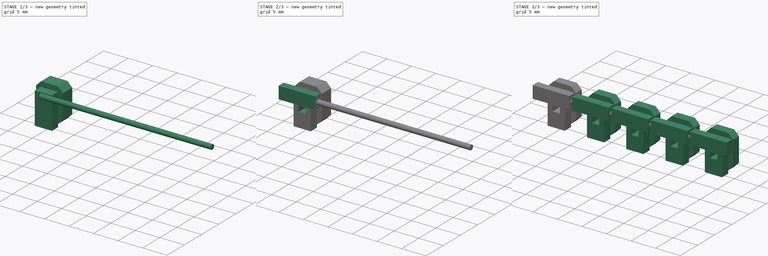
[diagram: build sequence overview — one tinted view per stage of 3, left to right]
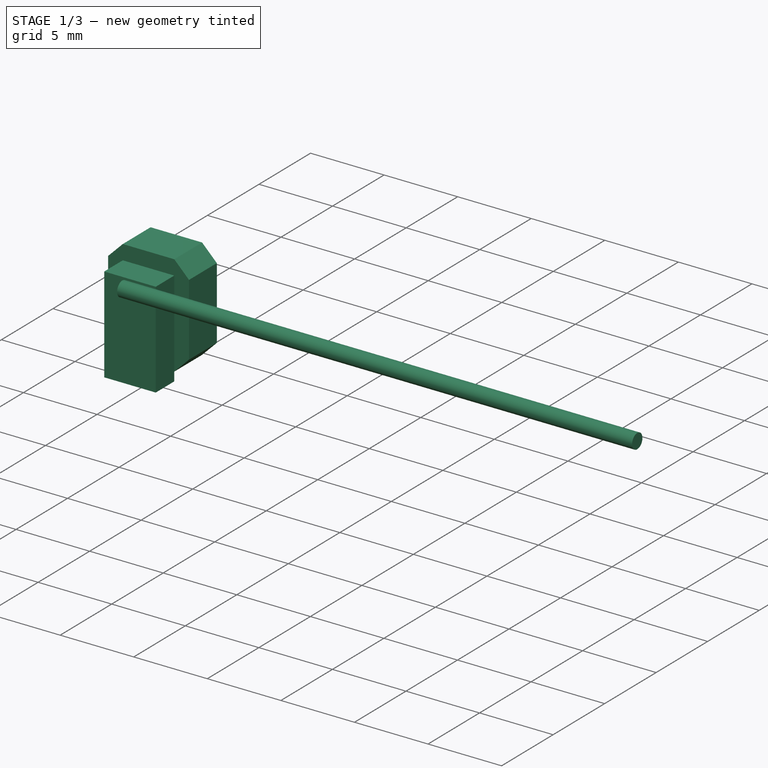
[diagram: stage 1 of 3 — iso view after this stage's code; geometry added in this stage tinted green]
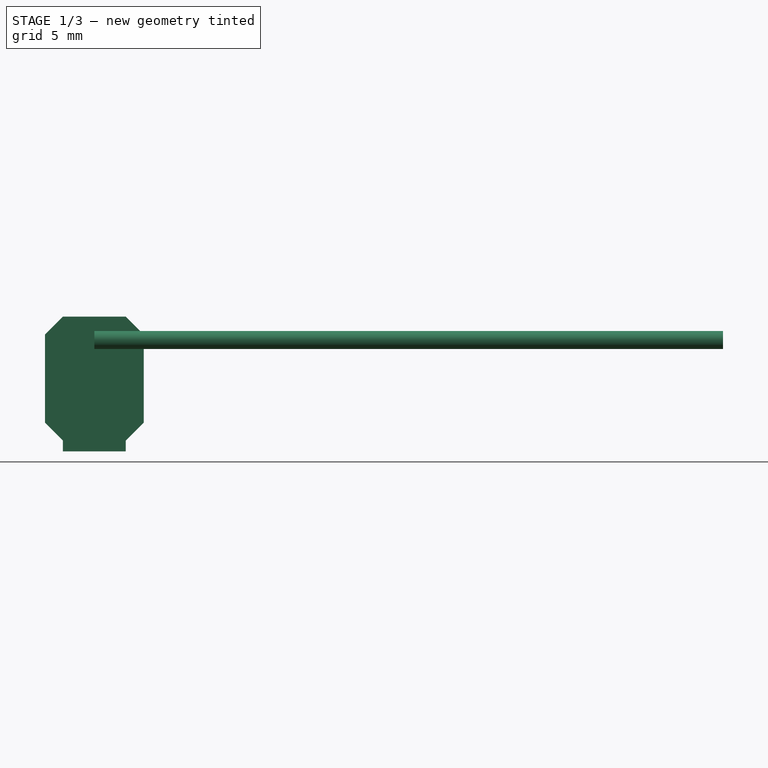
[diagram: stage 1 of 3 — front view after this stage's code; geometry added in this stage tinted green]
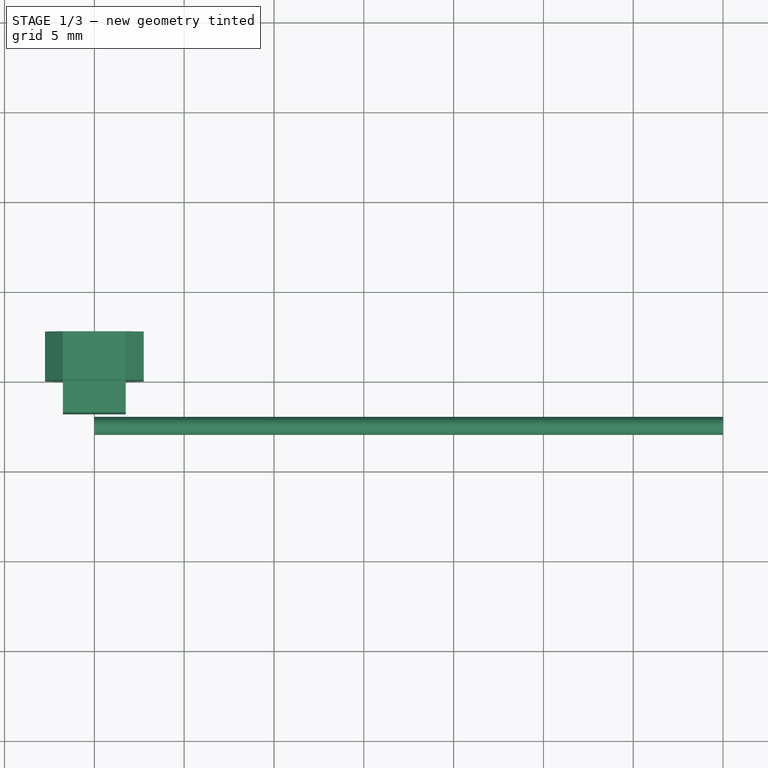
[diagram: stage 1 of 3 — top view after this stage's code; geometry added in this stage tinted green]
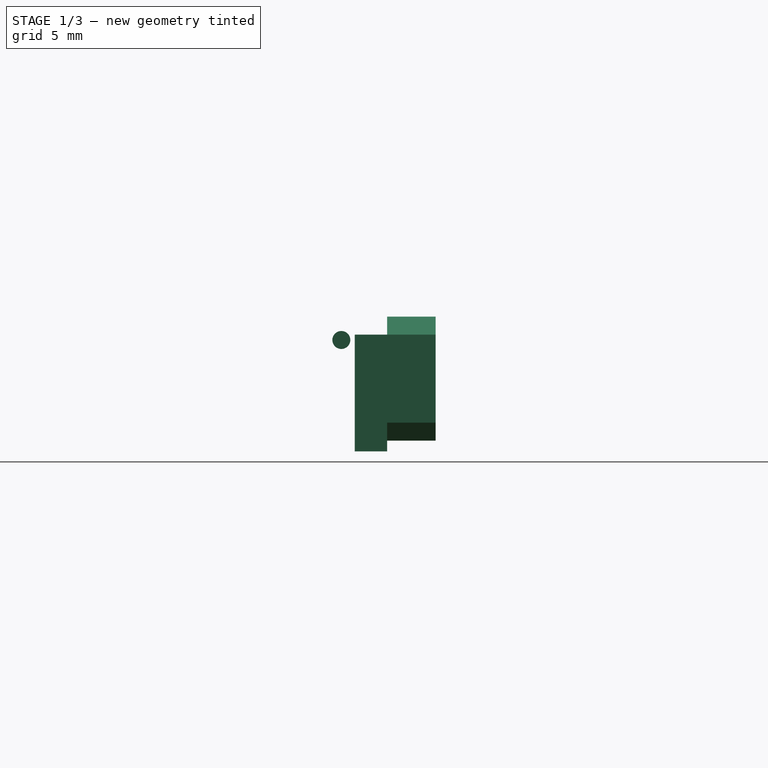
[diagram: stage 1 of 3 — right view after this stage's code; geometry added in this stage tinted green]
FCSTD DOCUMENT  (FreeCAD 0.16R6706 (Git))
Label: hhkb-swcaps-octagon,chamfer-r1
License: All rights reserved
LicenseURL: http://en.wikipedia.org/wiki/All_rights_reserved
objects: Sketcher::SketchObject×4, PartDesign::Pad×3, PartDesign::Pocket×1, PartDesign::Chamfer×1, Part::FeaturePython×1, Part::Cylinder×1, Part::MultiFuse×1
note: 16 computed .brp shape members not serialized (recipe doc carries the construction recipe); baked Part::Feature solids carry a one-line shape summary decoded from their .brp

FEATURE [Sketcher::SketchObject] Sketch  label="Body"
  Placement = pos=(0,0,0) rot=(1,0,0;1.5708rad)
  sketch-geometry (4):
    g0: LineSegment StartX=1.75 StartY=0 StartZ=0 EndX=-1.75 EndY=0 EndZ=0
    g1: LineSegment StartX=-1.75 StartY=0 StartZ=0 EndX=-1.75 EndY=6.5 EndZ=0
    g2: LineSegment StartX=-1.75 StartY=6.5 StartZ=0 EndX=1.75 EndY=6.5 EndZ=0
    g3: LineSegment StartX=1.75 StartY=6.5 StartZ=0 EndX=1.75 EndY=0 EndZ=0
  constraints (12):
    c: Coincident(g0,g1)
    c: Coincident(g1,g2)
    c: Coincident(g2,g3)
    c: Coincident(g3,g0)
    c: Horizontal(g0)
    c: Horizontal(g2)
    c: Vertical(g1)
    c: Vertical(g3)
    c: PointOnObject(g0,g-1)
    c: Symmetric(g2,g1,g-2)
    c: DistanceY(g3,g3) = 6.5  'Height'
    c: DistanceX(g2,g2) = 3.5  'Width'
FEATURE [PartDesign::Pad] Pad  label="PadBody"
  Length = 1.8
  Length2 = 100
  Placement = pos=(0,0,0) rot=(1,0,0;1.5708rad)
  Sketch = -> Sketch
  Type = 0
FEATURE [Sketcher::SketchObject] Sketch001  label="Cap"
  ExternalGeometry = -> [Pad]
  Placement = pos=(0,0,0) rot=(-1,0,0;1.5708rad)
  Support = -> Pad [Face5]
  sketch-geometry (8):
    g0: LineSegment StartX=-1.75 StartY=-0.6 StartZ=0 EndX=1.75 EndY=-0.6 EndZ=0
    g1: LineSegment StartX=2.75 StartY=-1.6 StartZ=0 EndX=2.75 EndY=-6.5 EndZ=0
    g2: LineSegment StartX=1.75 StartY=-7.5 StartZ=0 EndX=-1.75 EndY=-7.5 EndZ=0
    g3: LineSegment StartX=-2.75 StartY=-6.5 StartZ=0 EndX=-2.75 EndY=-1.6 EndZ=0
    g4: LineSegment StartX=-1.75 StartY=-0.6 StartZ=0 EndX=-2.75 EndY=-1.6 EndZ=0
    g5: LineSegment StartX=1.75 StartY=-0.6 StartZ=0 EndX=2.75 EndY=-1.6 EndZ=0
    g6: LineSegment StartX=2.75 StartY=-6.5 StartZ=0 EndX=1.75 EndY=-7.5 EndZ=0
    g7: LineSegment StartX=-2.75 StartY=-6.5 StartZ=0 EndX=-1.75 EndY=-7.5 EndZ=0
  constraints (23):
    c: Horizontal(g2)
    c: Vertical(g1)
    c: Vertical(g3)
    c: Coincident(g0,g4)  'Constraint8'
    c: Coincident(g3,g4)  'Constraint7'
    c: Coincident(g0,g5)  'Constraint6'
    c: Coincident(g1,g5)
    c: DistanceY(g0,g-3) = 0.6  'ClearancePCB'
    c: Coincident(g3,g7)
    c: Coincident(g2,g7)
    c: Coincident(g2,g6)
    c: Coincident(g1,g6)
    c: DistanceY(g2,g0) = 6.9  'Height'
    c: DistanceX(g3,g1) = 5.5  'Width'
    c: Equal(g6,g7)
    c: Equal(g7,g4)
    c: Equal(g4,g5)
    c: Symmetric(g0,g0,g-2)
    c: DistanceX(g4,g4) = 1  'ChamferWidth'
    c: DistanceY(g4,g4) = 1  'ChamferHeight'
    c: Symmetric(g1,g3,g-2)
    c: Equal(g3,g1)
    c: Equal(g2,g0)
FEATURE [PartDesign::Pad] Pad001  label="PadCap"
  Length = 2.7
  Length2 = 100
  Placement = pos=(0,0,0) rot=(1,0,0;1.5708rad)
  Sketch = -> Sketch001
  Type = 0
FEATURE [Part::Cylinder] Cylinder
  Angle = 360
  Height = 35
  Placement = pos=(0,-2.55,6.2) rot=(0,1,0;1.5708rad)
  Radius = 0.5
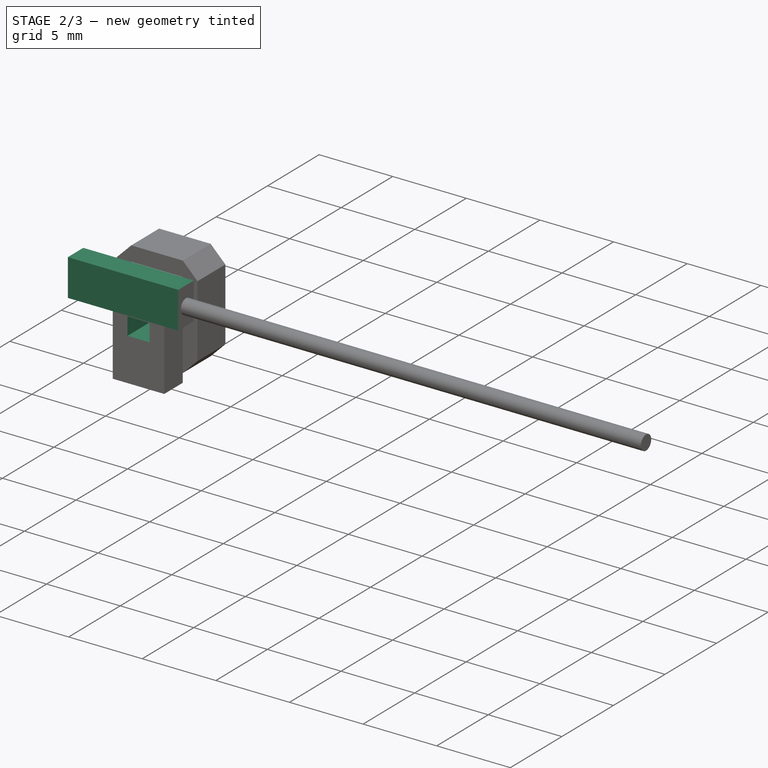
[diagram: stage 2 of 3 — iso view after this stage's code; geometry added in this stage tinted green]
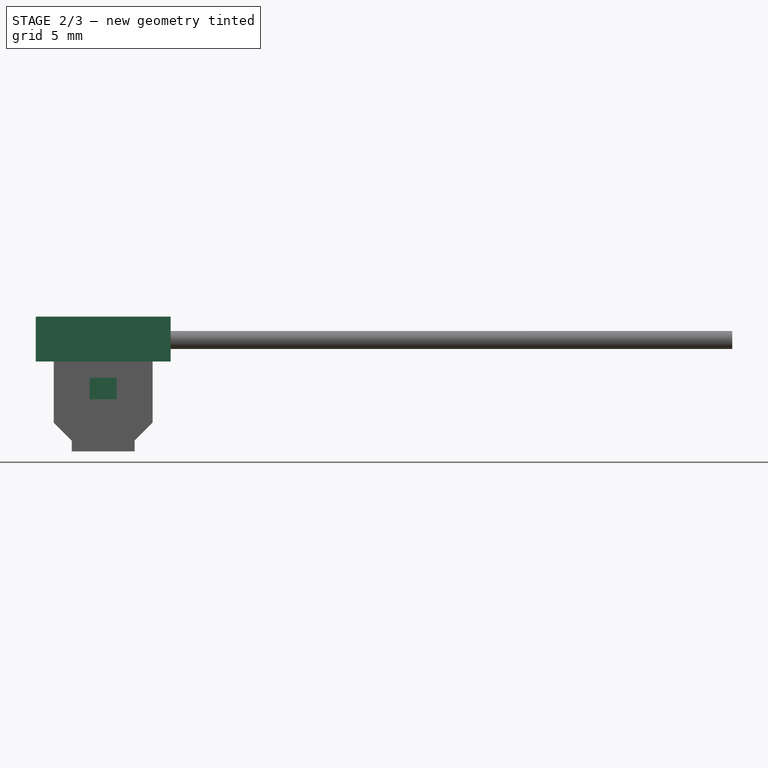
[diagram: stage 2 of 3 — front view after this stage's code; geometry added in this stage tinted green]
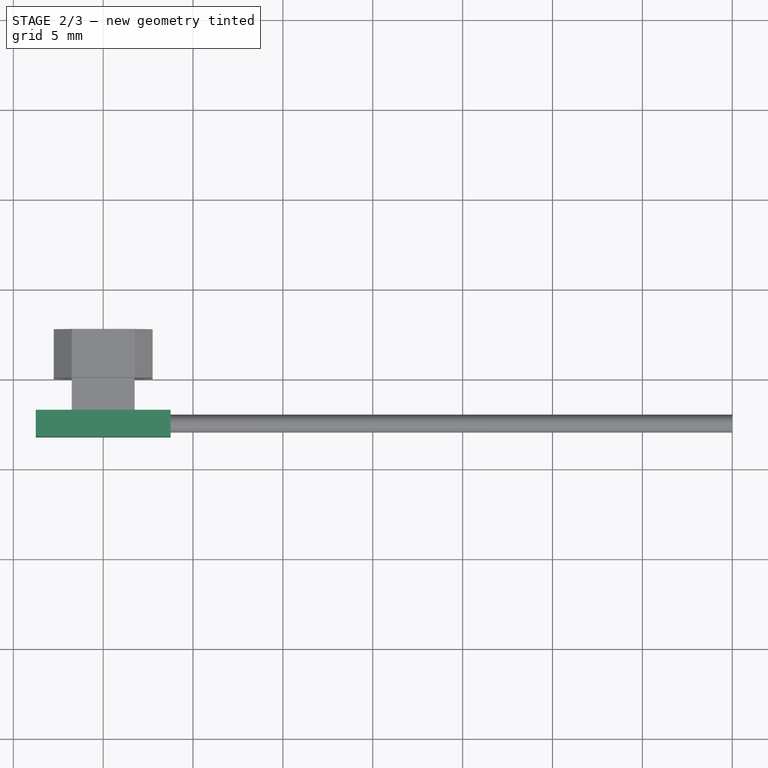
[diagram: stage 2 of 3 — top view after this stage's code; geometry added in this stage tinted green]
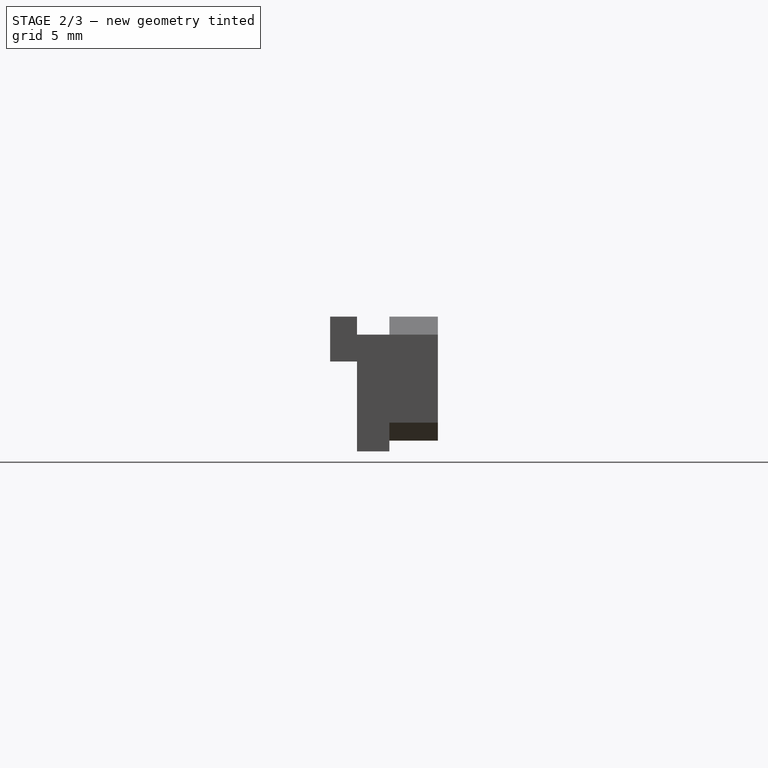
[diagram: stage 2 of 3 — right view after this stage's code; geometry added in this stage tinted green]
FEATURE [Sketcher::SketchObject] Sketch002  label="SwitchHole"
  ExternalGeometry = -> [Pad001]
  Placement = pos=(0,-1.8,0) rot=(1,0,0;1.5708rad)
  Support = -> Pad001 [Face5]
  sketch-geometry (4):
    g0: LineSegment StartX=-0.75 StartY=4.1 StartZ=0 EndX=0.75 EndY=4.1 EndZ=0
    g1: LineSegment StartX=0.75 StartY=4.1 StartZ=0 EndX=0.75 EndY=2.9 EndZ=0
    g2: LineSegment StartX=0.75 StartY=2.9 StartZ=0 EndX=-0.75 EndY=2.9 EndZ=0
    g3: LineSegment StartX=-0.75 StartY=2.9 StartZ=0 EndX=-0.75 EndY=4.1 EndZ=0
  constraints (12):
    c: Coincident(g0,g1)
    c: Coincident(g1,g2)
    c: Coincident(g2,g3)
    c: Coincident(g3,g0)
    c: Horizontal(g0)
    c: Horizontal(g2)
    c: Vertical(g1)
    c: Vertical(g3)
    c: DistanceY(g-3,g1) = 2.9  'HoleBottomFromPCB'
    c: Symmetric(g1,g2,g-2)
    c: DistanceY(g1,g1) = 1.2  'Height'
    c: DistanceX(g0,g0) = 1.5  'Width'
FEATURE [PartDesign::Pocket] Pocket  label="PocketSwitchHole"
  Length = 2.5
  Placement = pos=(0,0,0) rot=(1,0,0;1.5708rad)
  Sketch = -> Sketch002
  Type = 0
FEATURE [Sketcher::SketchObject] Sketch003  label="Support"
  ExternalGeometry = -> [Pocket]
  Placement = pos=(0,-1.8,0) rot=(1,0,0;1.5708rad)
  Support = -> Pocket [Face5]
  sketch-geometry (4):
    g0: LineSegment StartX=-3.75 StartY=7.5 StartZ=0 EndX=3.75 EndY=7.5 EndZ=0
    g1: LineSegment StartX=3.75 StartY=7.5 StartZ=0 EndX=3.75 EndY=5 EndZ=0
    g2: LineSegment StartX=3.75 StartY=5 StartZ=0 EndX=-3.75 EndY=5 EndZ=0
    g3: LineSegment StartX=-3.75 StartY=5 StartZ=0 EndX=-3.75 EndY=7.5 EndZ=0
  constraints (12):
    c: Coincident(g0,g1)
    c: Coincident(g1,g2)
    c: Coincident(g2,g3)
    c: Coincident(g3,g0)
    c: Horizontal(g0)
    c: Horizontal(g2)
    c: Vertical(g1)
    c: Vertical(g3)
    c: DistanceY(g-3,g1) = 5  'SupportBottomFromPCB'
    c: Symmetric(g0,g0,g-2)
    c: DistanceY(g1,g1) = 2.5  'Height'
    c: DistanceX(g0,g0) = 7.5  'Width'
FEATURE [PartDesign::Pad] Pad002  label="PadSupport"
  Length = 1.5
  Length2 = 100
  Placement = pos=(0,0,0) rot=(1,0,0;1.5708rad)
  Sketch = -> Sketch003
  Type = 0
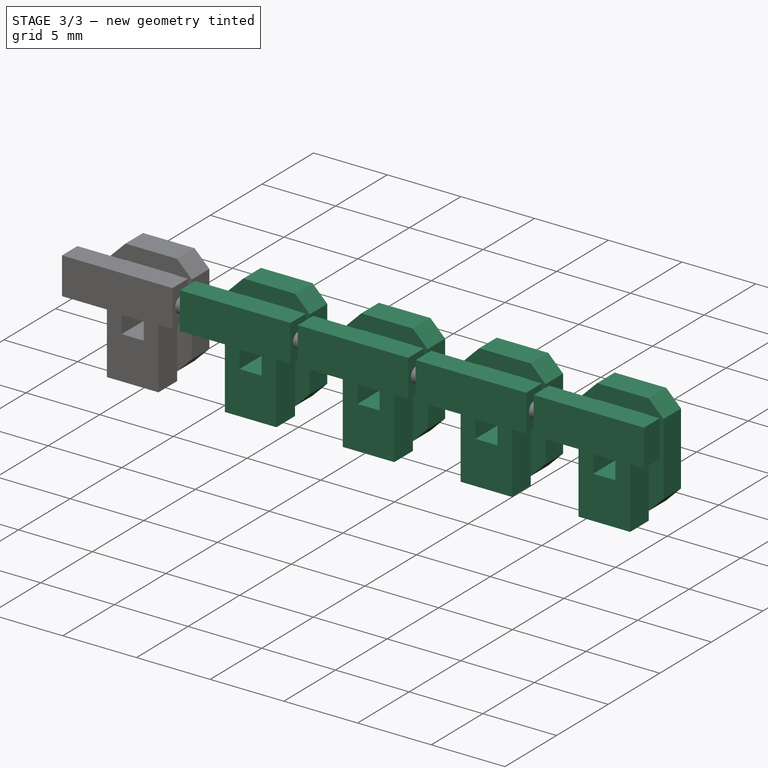
[diagram: stage 3 of 3 — iso view after this stage's code; geometry added in this stage tinted green]
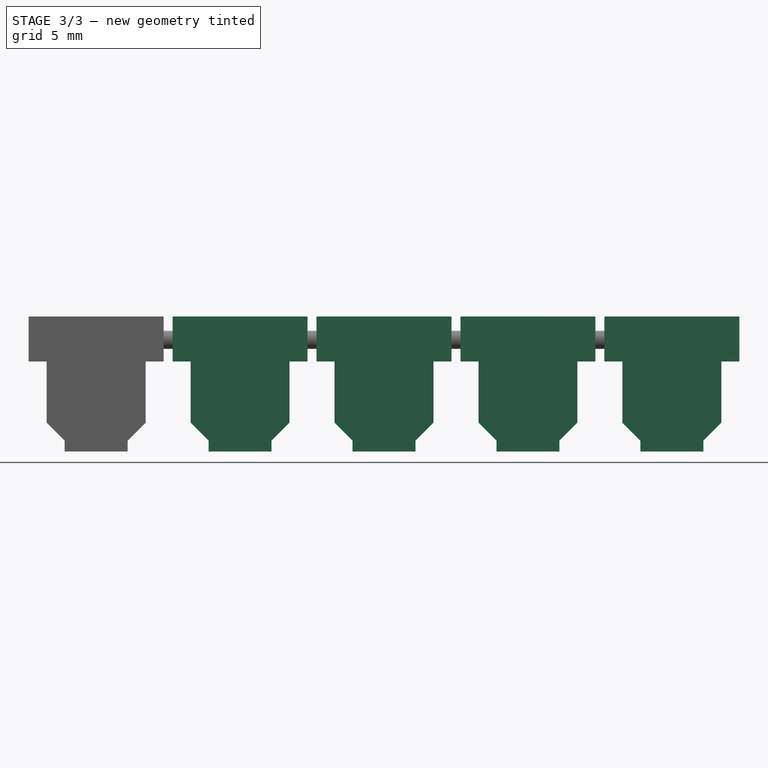
[diagram: stage 3 of 3 — front view after this stage's code; geometry added in this stage tinted green]
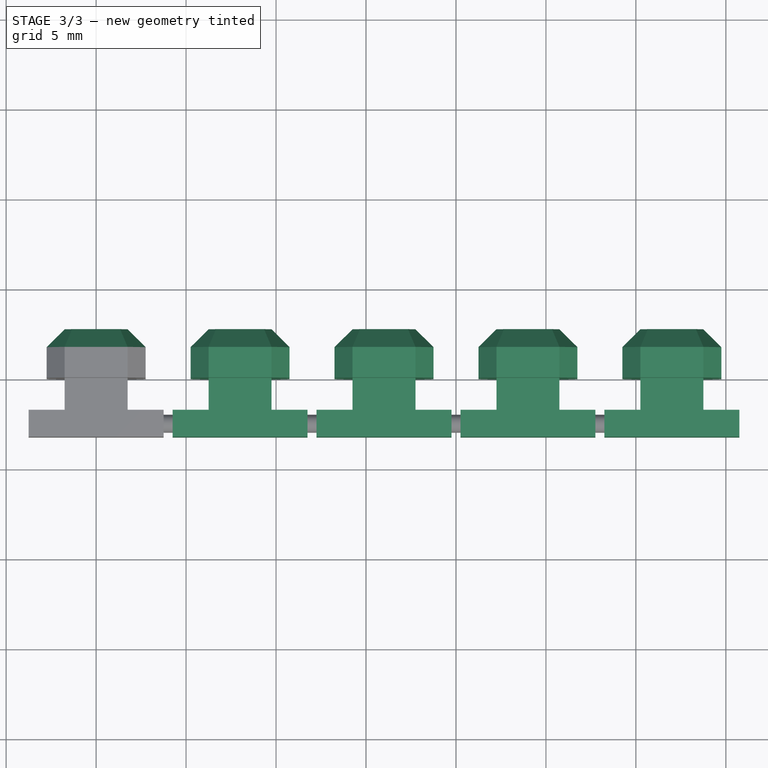
[diagram: stage 3 of 3 — top view after this stage's code; geometry added in this stage tinted green]
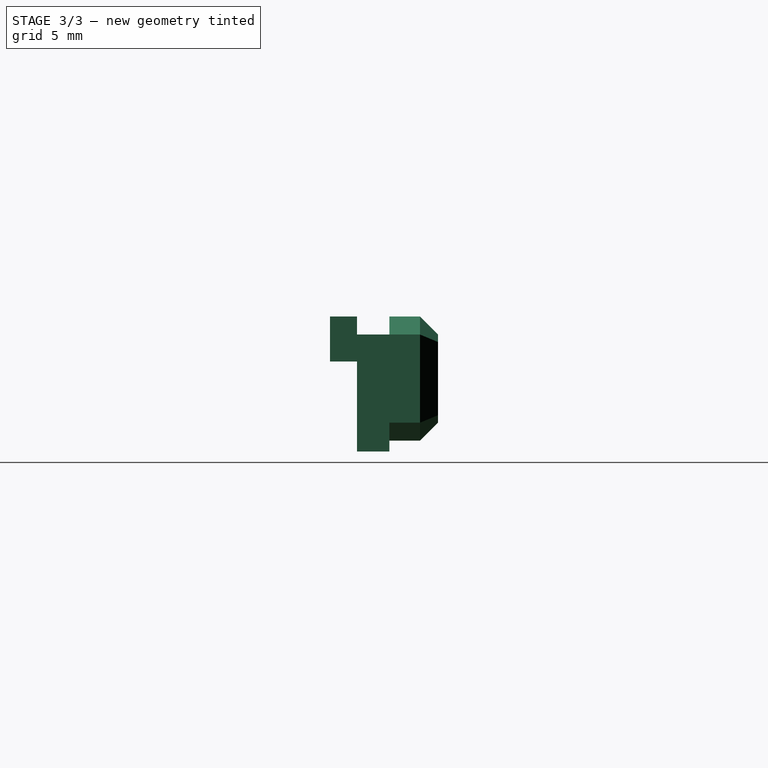
[diagram: stage 3 of 3 — right view after this stage's code; geometry added in this stage tinted green]
FEATURE [PartDesign::Chamfer] Chamfer
  Base = -> Pad002 [Edge51,Edge52,Edge36,Edge54,Edge56,Edge58,Edge60,Edge61]
  Placement = pos=(0,0,0) rot=(1,0,0;1.5708rad)
  Size = 1
FEATURE [Part::FeaturePython] Array  # Draft array (typed FeaturePython)
  Angle = 360
  ArrayType = 0
  Axis = (0,0,1)
  Base = -> Chamfer
  Center = (0,0,0)
  Fuse = false
  IntervalAxis = (0,0,0)
  IntervalX = (8,0,0)
  IntervalY = (0,1,0)
  IntervalZ = (0,0,0)
  NumberPolar = 1
  NumberX = 5
  NumberY = 1
  NumberZ = 1
FEATURE [Part::MultiFuse] Fusion
  Shapes = -> [Array,Cylinder]
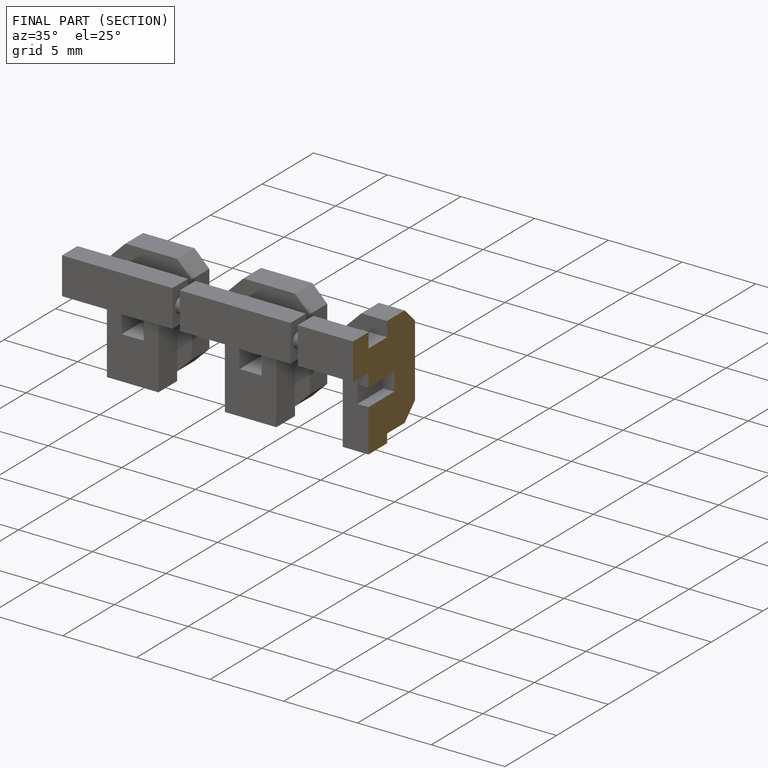
[diagram: finished part — half-section view (interior)]
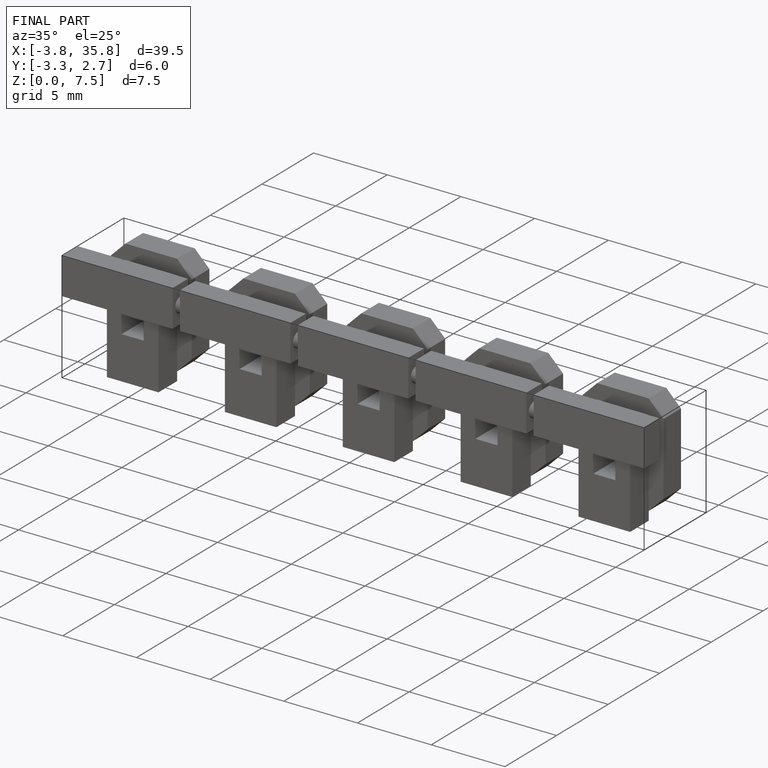
[diagram: finished part — iso view with bounding-box wireframe]
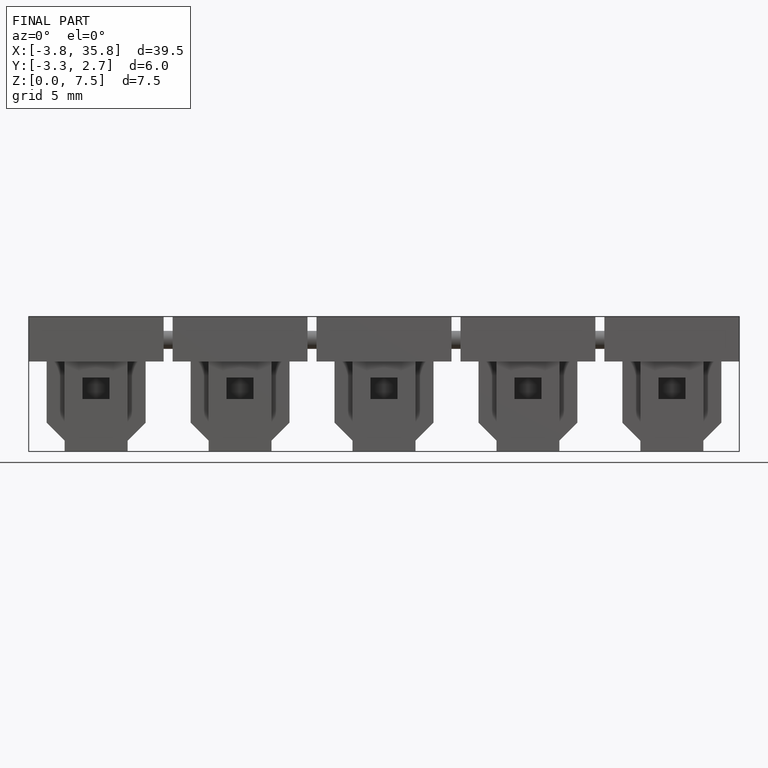
[diagram: finished part — front view with bounding-box wireframe]
